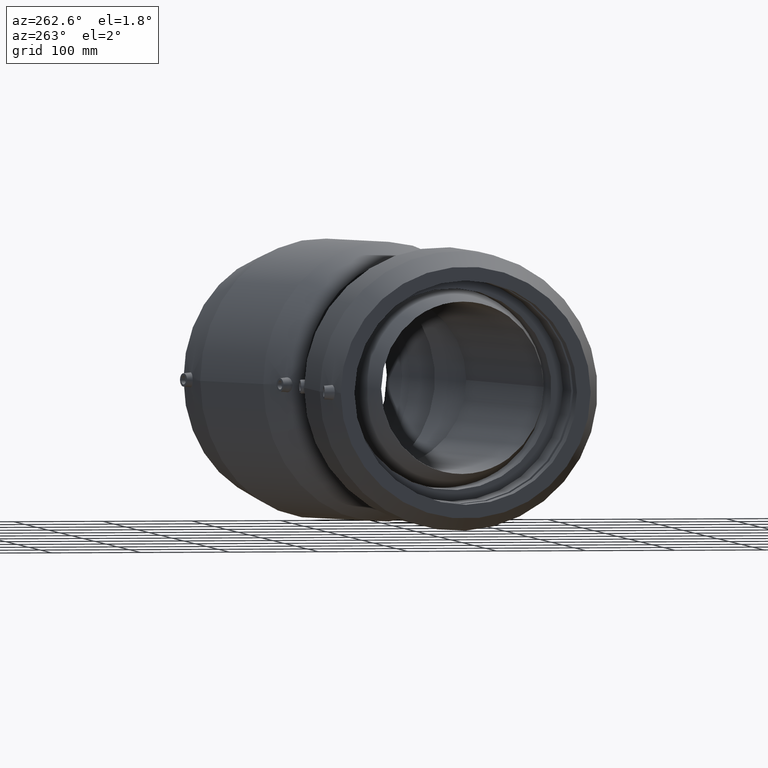
[diagram: clean part render]
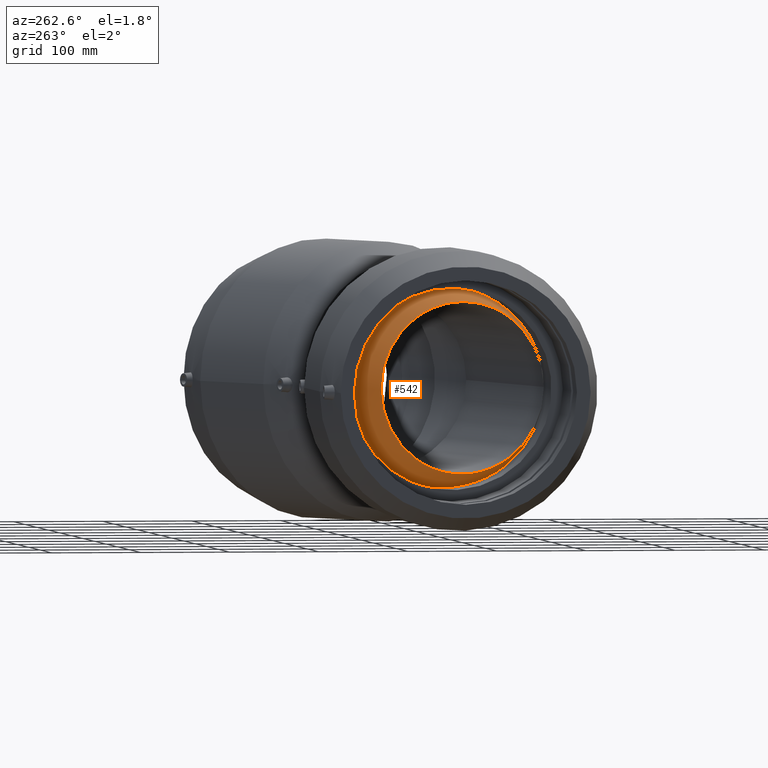
[diagram: same view with one face highlighted and labeled with its STEP entity id]
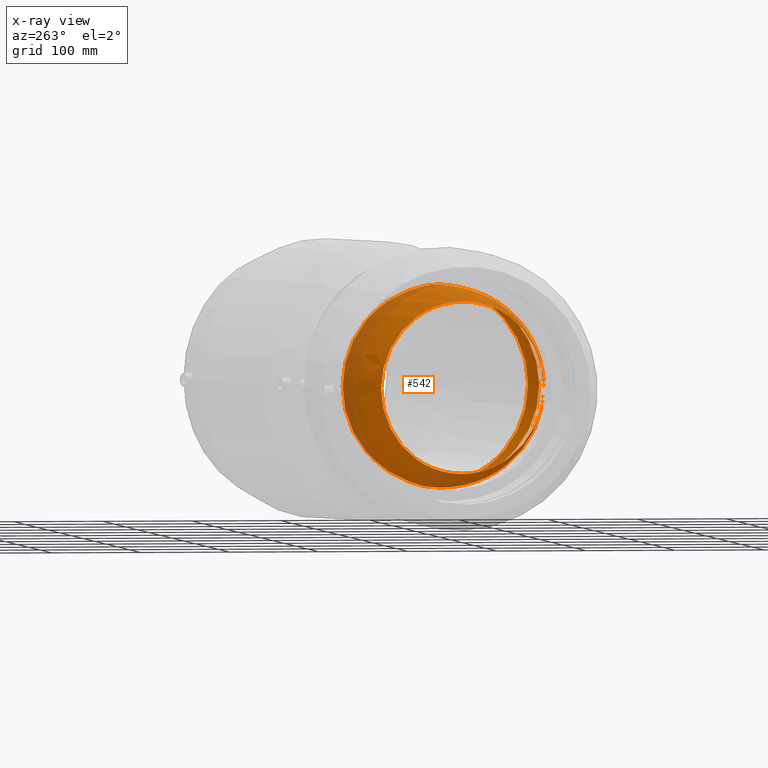
[diagram: x-ray of the same camera — body ghosted, the highlighted face saturated]
A machine part, auxiliary view. The second image highlights one B-rep face of the part: STEP entity #542.
The next image is the same camera in x-ray: the body ghosted, the highlighted face saturated — about 18% of this face is hidden behind the body in this view.
In plain terms, the highlighted spherical surface has radius 113.63 mm.
Its self-contained STEP definition (entity closure, byte-faithful):
#64=FACE_BOUND('',#166,.T.);
#114=FACE_OUTER_BOUND('',#165,.T.);
#165=EDGE_LOOP('',(#432,#433,#434,#435));
#166=EDGE_LOOP('',(#436));
#265=B_SPLINE_CURVE_WITH_KNOTS('',3,(#1007,#1008,#1009,#1010,#1011,#1012,
#1013,#1014,#1015,#1016,#1017,#1018,#1019,#1020,#1021,#1022,#1023,#1024,
#1025,#1026,#1027,#1028,#1029,#1030,#1031,#1032,#1033,#1034,#1035,#1036,
#1037,#1038,#1039,#1040,#1041,#1042,#1043,#1044,#1045,#1046,#1047,#1048,
#1049,#1050,#1051,#1052,#1053,#1054,#1055,#1056,#1057,#1058),
 .UNSPECIFIED.,.F.,.F.,(4,2,2,2,2,2,2,2,2,2,2,2,2,2,2,2,2,2,2,2,2,2,2,2,
2,4),(7.66593899304846,7.6933512542566,9.17497898154302,10.6566067088294,
11.8137754786766,12.9709442485238,13.4039862506657,13.8370282528077,14.319729429724,
14.5610800181822,14.8024306066404,15.0437811950986,15.2851317835568,15.7678329604732,
16.2008749626152,16.6339169647571,17.7910857346043,18.9482545044514,20.4298822317379,
21.9115099590243,23.3931376863107,24.8747654135971,27.2382315090708,29.6016976045444,
31.9651637000181,34.3286297954918),.UNSPECIFIED.);
#266=B_SPLINE_CURVE_WITH_KNOTS('',3,(#1061,#1062,#1063,#1064,#1065,#1066,
#1067,#1068,#1069,#1070,#1071,#1072,#1073,#1074,#1075,#1076,#1077,#1078,
#1079,#1080,#1081,#1082,#1083,#1084,#1085,#1086,#1087,#1088,#1089,#1090,
#1091,#1092,#1093,#1094,#1095,#1096,#1097,#1098,#1099,#1100,#1101,#1102,
#1103,#1104,#1105,#1106,#1107,#1108,#1109,#1110,#1111,#1112),
 .UNSPECIFIED.,.F.,.F.,(4,2,2,2,2,2,2,2,2,2,2,2,2,2,2,2,2,2,2,2,2,2,2,2,
2,4),(34.3286297954918,36.6920958909654,39.0555619864391,41.4190280819128,
43.7824941773864,45.2641219046728,46.7457496319593,48.2273773592457,49.7090050865321,
50.8661738563792,52.0233426262264,52.4563846283684,52.8894266305103,53.3721278074267,
53.6134783958849,53.8548289843431,54.0961795728013,54.3375301612595,54.8202313381759,
55.2532733403178,55.6863153424598,56.8434841123069,58.0006528821541,59.4822806094405,
60.9639083367269,60.9913205979351),.UNSPECIFIED.);
#274=CIRCLE('',#598,96.0491482905179);
#275=CIRCLE('',#599,110.156719827347);
#276=CIRCLE('',#600,109.509148290518);
#323=VERTEX_POINT('',#1004);
#324=VERTEX_POINT('',#1006);
#325=VERTEX_POINT('',#1059);
#326=VERTEX_POINT('',#1113);
#376=EDGE_CURVE('',#323,#323,#274,.T.);
#377=EDGE_CURVE('',#324,#323,#265,.T.);
#378=EDGE_CURVE('',#325,#324,#275,.T.);
#379=EDGE_CURVE('',#323,#325,#266,.T.);
#380=EDGE_CURVE('',#326,#326,#276,.T.);
#432=ORIENTED_EDGE('',*,*,#376,.F.);
#433=ORIENTED_EDGE('',*,*,#377,.F.);
#434=ORIENTED_EDGE('',*,*,#378,.F.);
#435=ORIENTED_EDGE('',*,*,#379,.F.);
#436=ORIENTED_EDGE('',*,*,#380,.T.);
#540=SPHERICAL_SURFACE('',#597,113.630281011888);
#542=ADVANCED_FACE('',(#114,#64),#540,.T.);
#597=AXIS2_PLACEMENT_3D('',#1003,#701,#702);
#598=AXIS2_PLACEMENT_3D('',#1005,#703,#704);
#599=AXIS2_PLACEMENT_3D('',#1060,#705,#706);
#600=AXIS2_PLACEMENT_3D('',#1114,#707,#708);
#701=DIRECTION('center_axis',(0.,0.,1.));
#702=DIRECTION('ref_axis',(1.,0.,0.));
#703=DIRECTION('center_axis',(-0.978147600733806,-0.20791169081776,0.));
#704=DIRECTION('ref_axis',(0.20791169081776,-0.978147600733806,0.));
#705=DIRECTION('center_axis',(-1.,-1.83697019872103E-16,0.));
#706=DIRECTION('ref_axis',(0.,0.,1.));
#707=DIRECTION('center_axis',(-0.978147600733806,-0.20791169081776,0.));
#708=DIRECTION('ref_axis',(0.20791169081776,-0.978147600733805,0.));
#1003=CARTESIAN_POINT('Origin',(100.919220962821,-5.92624252882432,0.));
#1004=CARTESIAN_POINT('',(61.5,-112.5,0.));
#1005=CARTESIAN_POINT('Origin',(41.5302591773127,-18.5497560471044,0.));
#1006=CARTESIAN_POINT('',(128.8,-46.9831790279604,102.219523029735));
#1007=CARTESIAN_POINT('Ctrl Pts',(128.8,-46.9831790279604,102.219523029735));
#1008=CARTESIAN_POINT('Ctrl Pts',(128.781269399655,-46.8950584816068,102.260025893402));
#1009=CARTESIAN_POINT('Ctrl Pts',(128.762509866186,-46.806890785332,102.300412415487));
#1010=CARTESIAN_POINT('Ctrl Pts',(127.728214754598,-41.9507277097719,104.517257692728));
#1011=CARTESIAN_POINT('Ctrl Pts',(126.627261784699,-37.0414924118887,106.34976194955));
#1012=CARTESIAN_POINT('Ctrl Pts',(124.261492844253,-27.2509964441909,109.269058835396));
#1013=CARTESIAN_POINT('Ctrl Pts',(122.99653587138,-22.3697966581013,110.355941381627));
#1014=CARTESIAN_POINT('Ctrl Pts',(120.607229946261,-14.0096764332859,111.68598559701));
#1015=CARTESIAN_POINT('Ctrl Pts',(119.375899727062,-9.97790269596659,112.127762407933));
#1016=CARTESIAN_POINT('Ctrl Pts',(116.607769044895,-2.00333438992037,112.553011041626));
#1017=CARTESIAN_POINT('Ctrl Pts',(115.069032345898,1.93874436598908,112.537299590682));
#1018=CARTESIAN_POINT('Ctrl Pts',(112.800232961216,6.72379539181217,112.306466744466));
#1019=CARTESIAN_POINT('Ctrl Pts',(112.083414441339,8.1370436583582,112.21378298127));
#1020=CARTESIAN_POINT('Ctrl Pts',(110.517536345416,10.8800600511437,111.981109392535));
#1021=CARTESIAN_POINT('Ctrl Pts',(109.666381097581,12.2086694164542,111.841568910845));
#1022=CARTESIAN_POINT('Ctrl Pts',(107.84055784336,14.6375847966796,111.551126206677));
#1023=CARTESIAN_POINT('Ctrl Pts',(106.676819362411,15.952898709453,111.367689052123));
#1024=CARTESIAN_POINT('Ctrl Pts',(104.686266966234,17.4410709419393,111.140950279653));
#1025=CARTESIAN_POINT('Ctrl Pts',(103.981386702647,17.8563427020633,111.074242944557));
#1026=CARTESIAN_POINT('Ctrl Pts',(102.50019561068,18.4365904877605,110.979405979479));
#1027=CARTESIAN_POINT('Ctrl Pts',(101.723722924349,18.6011972390529,110.951545556039));
#1028=CARTESIAN_POINT('Ctrl Pts',(100.114719001294,18.6011972390529,110.951545556039));
#1029=CARTESIAN_POINT('Ctrl Pts',(99.3382463149621,18.4365904877605,110.979405979479));
#1030=CARTESIAN_POINT('Ctrl Pts',(97.8570552229954,17.8563427020633,111.074242944557));
#1031=CARTESIAN_POINT('Ctrl Pts',(97.1521749594084,17.4410709419392,111.140950279653));
#1032=CARTESIAN_POINT('Ctrl Pts',(95.1616225632318,15.952898709453,111.367689052123));
#1033=CARTESIAN_POINT('Ctrl Pts',(93.9978840822823,14.6375847966796,111.551126206677));
#1034=CARTESIAN_POINT('Ctrl Pts',(92.1720608280611,12.2086694164542,111.841568910845));
#1035=CARTESIAN_POINT('Ctrl Pts',(91.3209055802266,10.8800600511437,111.981109392535));
#1036=CARTESIAN_POINT('Ctrl Pts',(89.7550274843038,8.1370436583582,112.21378298127));
#1037=CARTESIAN_POINT('Ctrl Pts',(89.0382089644268,6.72379539181217,112.306466744466));
#1038=CARTESIAN_POINT('Ctrl Pts',(86.7694095797445,1.93874436598908,112.537299590682));
#1039=CARTESIAN_POINT('Ctrl Pts',(85.2306728807478,-2.00333438992038,112.553011041626));
#1040=CARTESIAN_POINT('Ctrl Pts',(82.4625421985807,-9.97790269596661,112.127762407933));
#1041=CARTESIAN_POINT('Ctrl Pts',(81.2312119793812,-14.0096764332859,111.68598559701));
#1042=CARTESIAN_POINT('Ctrl Pts',(78.8419060542624,-22.3697966581013,110.355941381627));
#1043=CARTESIAN_POINT('Ctrl Pts',(77.5769490813896,-27.250996444191,109.269058835396));
#1044=CARTESIAN_POINT('Ctrl Pts',(75.2111801409431,-37.0414924118887,106.34976194955));
#1045=CARTESIAN_POINT('Ctrl Pts',(74.1102271710444,-41.9507277097719,104.517257692728));
#1046=CARTESIAN_POINT('Ctrl Pts',(72.0792136429615,-51.4866259176811,100.164106742579));
#1047=CARTESIAN_POINT('Ctrl Pts',(71.1482243839195,-56.1172068614921,97.6416477326395));
#1048=CARTESIAN_POINT('Ctrl Pts',(69.4588827612511,-64.8445448610636,92.0772354082085));
#1049=CARTESIAN_POINT('Ctrl Pts',(68.7004537512761,-68.9413015040565,89.0353047162498));
#1050=CARTESIAN_POINT('Ctrl Pts',(66.9541403369187,-78.6336436114444,80.8326310601756));
#1051=CARTESIAN_POINT('Ctrl Pts',(65.9940846840826,-84.2536435136074,74.995001675574));
#1052=CARTESIAN_POINT('Ctrl Pts',(64.3452312395162,-94.200214439381,62.0422946407742));
#1053=CARTESIAN_POINT('Ctrl Pts',(63.6557630845712,-98.5274931264806,54.9278457774501));
#1054=CARTESIAN_POINT('Ctrl Pts',(62.5622169086588,-105.504513233094,39.9190855429028));
#1055=CARTESIAN_POINT('Ctrl Pts',(62.1568868911722,-108.16108039657,32.0101981066606));
#1056=CARTESIAN_POINT('Ctrl Pts',(61.6256976701801,-111.659286142965,15.989869126883));
#1057=CARTESIAN_POINT('Ctrl Pts',(61.5,-112.5,7.87822031824556));
#1058=CARTESIAN_POINT('Ctrl Pts',(61.5,-112.5,1.33226762955019E-14));
#1059=CARTESIAN_POINT('',(128.8,-46.9831790279604,-102.219523029735));
#1060=CARTESIAN_POINT('Origin',(128.8,-5.92624252882432,0.));
#1061=CARTESIAN_POINT('Ctrl Pts',(61.4999999999999,-112.5,1.33226762955019E-14));
#1062=CARTESIAN_POINT('Ctrl Pts',(61.4999999999999,-112.5,-7.87822031824555));
#1063=CARTESIAN_POINT('Ctrl Pts',(61.6256976701801,-111.659286142965,-15.989869126883));
#1064=CARTESIAN_POINT('Ctrl Pts',(62.1568868911723,-108.161080396569,-32.0101981066606));
#1065=CARTESIAN_POINT('Ctrl Pts',(62.5622169086587,-105.504513233094,-39.9190855429028));
#1066=CARTESIAN_POINT('Ctrl Pts',(63.6557630845711,-98.5274931264806,-54.92784577745));
#1067=CARTESIAN_POINT('Ctrl Pts',(64.3452312395162,-94.200214439381,-62.0422946407741));
#1068=CARTESIAN_POINT('Ctrl Pts',(65.9940846840826,-84.2536435136074,-74.9950016755739));
#1069=CARTESIAN_POINT('Ctrl Pts',(66.9541403369187,-78.6336436114444,-80.8326310601755));
#1070=CARTESIAN_POINT('Ctrl Pts',(68.7004537512761,-68.9413015040565,-89.0353047162498));
#1071=CARTESIAN_POINT('Ctrl Pts',(69.458882761251,-64.8445448610636,-92.0772354082085));
#1072=CARTESIAN_POINT('Ctrl Pts',(71.1482243839195,-56.1172068614922,-97.6416477326394));
#1073=CARTESIAN_POINT('Ctrl Pts',(72.0792136429615,-51.4866259176811,-100.164106742579));
#1074=CARTESIAN_POINT('Ctrl Pts',(74.1102271710444,-41.950727709772,-104.517257692728));
#1075=CARTESIAN_POINT('Ctrl Pts',(75.2111801409432,-37.0414924118888,-106.34976194955));
#1076=CARTESIAN_POINT('Ctrl Pts',(77.5769490813896,-27.250996444191,-109.269058835396));
#1077=CARTESIAN_POINT('Ctrl Pts',(78.8419060542623,-22.3697966581013,-110.355941381627));
#1078=CARTESIAN_POINT('Ctrl Pts',(81.2312119793812,-14.0096764332859,-111.68598559701));
#1079=CARTESIAN_POINT('Ctrl Pts',(82.4625421985806,-9.97790269596665,-112.127762407933));
#1080=CARTESIAN_POINT('Ctrl Pts',(85.2306728807477,-2.0033343899204,-112.553011041626));
#1081=CARTESIAN_POINT('Ctrl Pts',(86.7694095797446,1.938744365989,-112.537299590682));
#1082=CARTESIAN_POINT('Ctrl Pts',(89.038208964427,6.72379539181208,-112.306466744466));
#1083=CARTESIAN_POINT('Ctrl Pts',(89.7550274843039,8.13704365835815,-112.21378298127));
#1084=CARTESIAN_POINT('Ctrl Pts',(91.3209055802267,10.8800600511436,-111.981109392535));
#1085=CARTESIAN_POINT('Ctrl Pts',(92.1720608280611,12.2086694164542,-111.841568910845));
#1086=CARTESIAN_POINT('Ctrl Pts',(93.9978840822823,14.6375847966796,-111.551126206677));
#1087=CARTESIAN_POINT('Ctrl Pts',(95.1616225632318,15.952898709453,-111.367689052123));
#1088=CARTESIAN_POINT('Ctrl Pts',(97.1521749594085,17.4410709419393,-111.140950279653));
#1089=CARTESIAN_POINT('Ctrl Pts',(97.8570552229955,17.8563427020633,-111.074242944557));
#1090=CARTESIAN_POINT('Ctrl Pts',(99.3382463149621,18.4365904877605,-110.979405979479));
#1091=CARTESIAN_POINT('Ctrl Pts',(100.114719001294,18.6011972390529,-110.951545556039));
#1092=CARTESIAN_POINT('Ctrl Pts',(101.723722924349,18.6011972390529,-110.951545556039));
#1093=CARTESIAN_POINT('Ctrl Pts',(102.50019561068,18.4365904877605,-110.979405979479));
#1094=CARTESIAN_POINT('Ctrl Pts',(103.981386702647,17.8563427020633,-111.074242944557));
#1095=CARTESIAN_POINT('Ctrl Pts',(104.686266966234,17.4410709419393,-111.140950279653));
#1096=CARTESIAN_POINT('Ctrl Pts',(106.676819362411,15.952898709453,-111.367689052123));
#1097=CARTESIAN_POINT('Ctrl Pts',(107.84055784336,14.6375847966796,-111.551126206677));
#1098=CARTESIAN_POINT('Ctrl Pts',(109.666381097581,12.2086694164542,-111.841568910845));
#1099=CARTESIAN_POINT('Ctrl Pts',(110.517536345416,10.8800600511436,-111.981109392535));
#1100=CARTESIAN_POINT('Ctrl Pts',(112.083414441339,8.13704365835815,-112.21378298127));
#1101=CARTESIAN_POINT('Ctrl Pts',(112.800232961216,6.72379539181209,-112.306466744466));
#1102=CARTESIAN_POINT('Ctrl Pts',(115.069032345898,1.938744365989,-112.537299590682));
#1103=CARTESIAN_POINT('Ctrl Pts',(116.607769044895,-2.0033343899204,-112.553011041626));
#1104=CARTESIAN_POINT('Ctrl Pts',(119.375899727062,-9.97790269596664,-112.127762407933));
#1105=CARTESIAN_POINT('Ctrl Pts',(120.607229946261,-14.0096764332859,-111.68598559701));
#1106=CARTESIAN_POINT('Ctrl Pts',(122.99653587138,-22.3697966581013,-110.355941381627));
#1107=CARTESIAN_POINT('Ctrl Pts',(124.261492844253,-27.250996444191,-109.269058835396));
#1108=CARTESIAN_POINT('Ctrl Pts',(126.6272617847,-37.0414924118887,-106.34976194955));
#1109=CARTESIAN_POINT('Ctrl Pts',(127.728214754598,-41.950727709772,-104.517257692728));
#1110=CARTESIAN_POINT('Ctrl Pts',(128.762509866186,-46.806890785332,-102.300412415487));
#1111=CARTESIAN_POINT('Ctrl Pts',(128.781269399655,-46.8950584816068,-102.260025893402));
#1112=CARTESIAN_POINT('Ctrl Pts',(128.8,-46.9831790279604,-102.219523029735));
#1113=CARTESIAN_POINT('',(153.349482037887,-106.737494313738,0.));
#1114=CARTESIAN_POINT('Origin',(130.581249856792,0.378616345034992,0.));